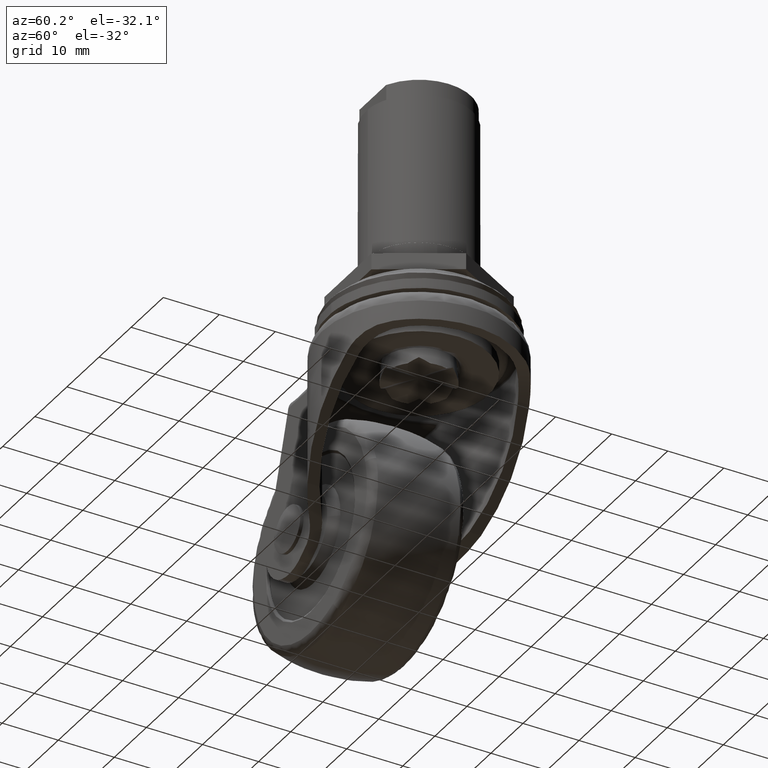
[diagram: clean part render]
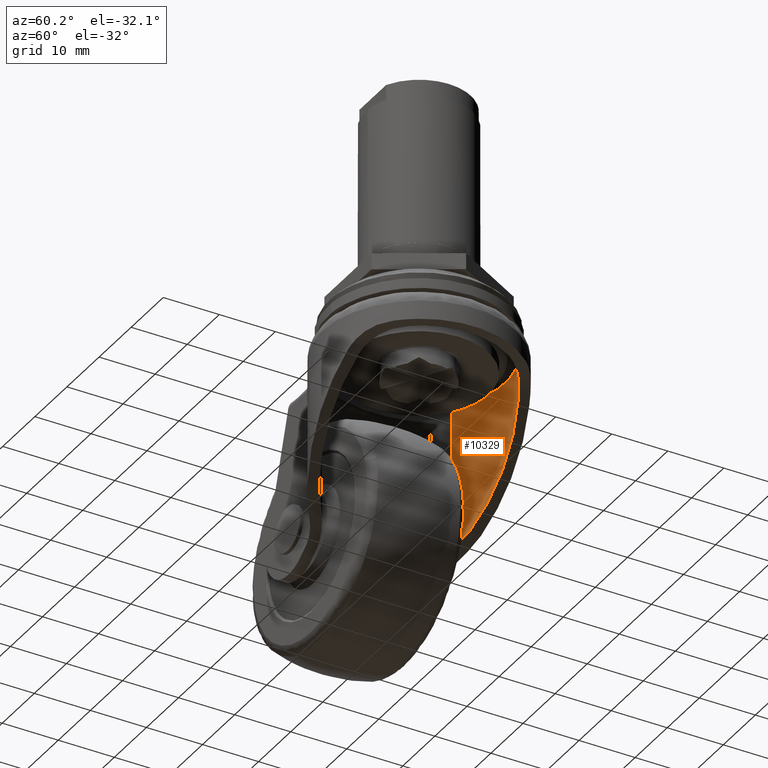
[diagram: same view with one face highlighted and labeled with its STEP entity id]
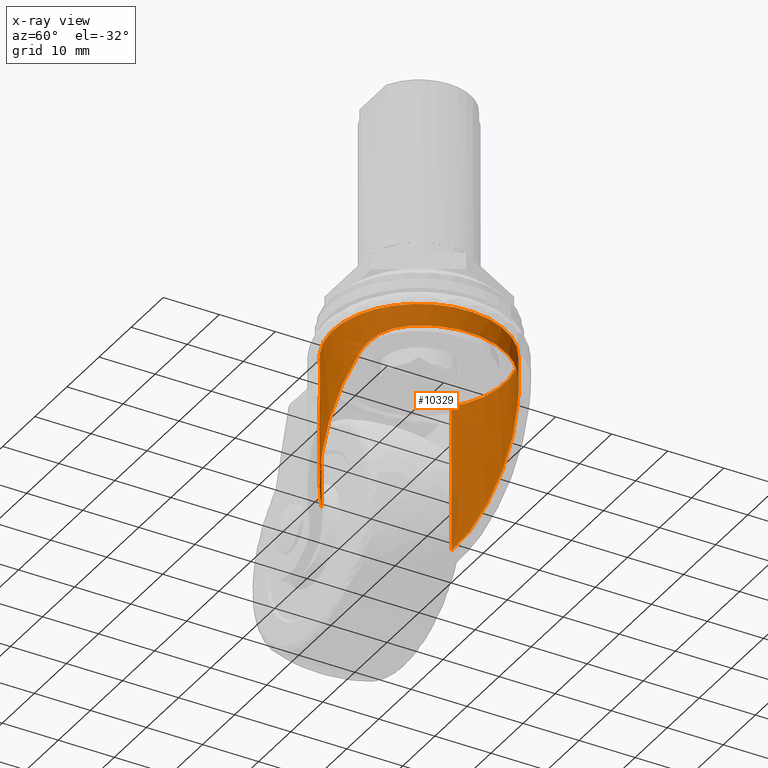
[diagram: x-ray of the same camera — body ghosted, the highlighted face saturated]
A machine part, auxiliary view. The second image highlights one B-rep face of the part: STEP entity #10329.
The next image is the same camera in x-ray: the body ghosted, the highlighted face saturated — about 3% of this face is hidden behind the body in this view.
In plain terms, the highlighted face is a freeform B-spline surface patch.
Its self-contained STEP definition (entity closure, byte-faithful):
#6737=CARTESIAN_POINT('',(-10.172110341809001,-11.575675841784021,-10.923080000000001));
#6738=VERTEX_POINT('',#6737);
#6799=CARTESIAN_POINT('',(-10.172110341809001,11.575675841784021,-10.923080000000001));
#6800=VERTEX_POINT('',#6799);
#6814=CARTESIAN_POINT('',(-10.172110341809010,-11.575675841784021,-10.923080000000001));
#6815=CARTESIAN_POINT('',(0.916592235011827,-21.319859049797863,-10.923080000000002));
#6816=CARTESIAN_POINT('',(11.128072722811810,-10.659929524898921,-10.923080000000001));
#6817=CARTESIAN_POINT('',(21.339553210611783,3.469447E-015,-10.923080000000002));
#6818=CARTESIAN_POINT('',(11.128072722811799,10.659929524898930,-10.923080000000001));
#6819=CARTESIAN_POINT('',(0.916592235011815,21.319859049797863,-10.923080000000002));
#6820=CARTESIAN_POINT('',(-10.172110341809010,11.575675841784021,-10.923080000000001));
#6828=(BOUNDED_CURVE()B_SPLINE_CURVE(2,(#6814,#6815,#6816,#6817,#6818,#6819,#6820),.UNSPECIFIED.,.F.,.U.)B_SPLINE_CURVE_WITH_KNOTS((3,2,2,3),(0.0,0.333333333333333,0.666666666666667,1.0),.UNSPECIFIED.)CURVE()GEOMETRIC_REPRESENTATION_ITEM()RATIONAL_B_SPLINE_CURVE((1.0,0.722133207190902,1.0,0.722133207190902,1.0,0.722133207190902,1.0))REPRESENTATION_ITEM(''));
#6829=EDGE_CURVE('',#6738,#6800,#6828,.T.);
#10043=CARTESIAN_POINT('',(-10.172110341809001,-11.575675841784021,-37.220848291844149));
#10044=VERTEX_POINT('',#10043);
#10045=CARTESIAN_POINT('',(-10.172110341809001,-11.575675841784021,-10.923080000000001));
#10046=CARTESIAN_POINT('',(-10.172110341809001,-11.575675841784021,-37.220848291844149));
#10047=QUASI_UNIFORM_CURVE('',1,(#10045,#10046),.UNSPECIFIED.,.F.,.U.);
#10048=EDGE_CURVE('',#6738,#10044,#10047,.T.);
#10119=CARTESIAN_POINT('',(-10.172110341809001,11.575675841784021,-37.220848291844149));
#10120=VERTEX_POINT('',#10119);
#10134=CARTESIAN_POINT('',(-10.172110341809001,11.575675841784021,-37.220848291844149));
#10135=CARTESIAN_POINT('',(-10.172110341809001,11.575675841784021,-10.923080000000001));
#10136=QUASI_UNIFORM_CURVE('',1,(#10134,#10135),.UNSPECIFIED.,.F.,.U.);
#10137=EDGE_CURVE('',#10120,#6800,#10136,.T.);
#10164=CARTESIAN_POINT('',(-10.600989889610220,11.184235036889280,-37.878292499140251));
#10165=CARTESIAN_POINT('',(-10.600989889610220,11.184235036889280,-10.249199687521489));
#10166=CARTESIAN_POINT('',(0.453861924826980,21.662588892065706,-37.878292499140251));
#10167=CARTESIAN_POINT('',(0.453861924826980,21.662588892065706,-10.249199687521493));
#10168=CARTESIAN_POINT('',(11.060132618569700,10.730403834882001,-37.878292499140251));
#10169=CARTESIAN_POINT('',(11.060132618569700,10.730403834882001,-10.249199687521489));
#10170=CARTESIAN_POINT('',(21.666403312312415,-0.201781222301694,-37.878292499140251));
#10171=CARTESIAN_POINT('',(21.666403312312415,-0.201781222301694,-10.249199687521493));
#10172=CARTESIAN_POINT('',(10.858365055241750,-10.934532835338910,-37.878292499140251));
#10173=CARTESIAN_POINT('',(10.858365055241750,-10.934532835338910,-10.249199687521489));
#10174=CARTESIAN_POINT('',(0.050326798171074,-21.667284448376130,-37.878292499140251));
#10175=CARTESIAN_POINT('',(0.050326798171074,-21.667284448376130,-10.249199687521493));
#10176=CARTESIAN_POINT('',(-10.807452691397019,-10.984856226788549,-37.878292499140251));
#10177=CARTESIAN_POINT('',(-10.807452691397019,-10.984856226788549,-10.249199687521489));
#10185=(BOUNDED_SURFACE()B_SPLINE_SURFACE(1,2,((#10164,#10166,#10168,#10170,#10172,#10174,#10176),(#10165,#10167,#10169,#10171,#10173,#10175,#10177)),.UNSPECIFIED.,.F.,.F.,.U.)B_SPLINE_SURFACE_WITH_KNOTS((2,2),(3,2,2,3),(0.0,27.629092811618762),(0.0,25.322309091063321,50.644618182126642,75.966927273189953),.UNSPECIFIED.)GEOMETRIC_REPRESENTATION_ITEM()RATIONAL_B_SPLINE_SURFACE(((1.0,0.711208572010137,1.0,0.711208572010137,1.0,0.711208572010137,1.0),(1.0,0.711208572010137,1.0,0.711208572010137,1.0,0.711208572010137,1.0)))REPRESENTATION_ITEM('')SURFACE());
#10186=ORIENTED_EDGE('',*,*,#10048,.F.);
#10187=ORIENTED_EDGE('',*,*,#6829,.T.);
#10188=ORIENTED_EDGE('',*,*,#10137,.F.);
#10189=CARTESIAN_POINT('',(-7.697175877460260,13.349965674541719,-34.593574192256312));
#10190=VERTEX_POINT('',#10189);
#10191=CARTESIAN_POINT('',(-7.697175877460294,13.349965674541760,-34.593574192256277));
#10192=CARTESIAN_POINT('',(-9.022730131466346,12.585692231677617,-36.000720284128704));
#10193=CARTESIAN_POINT('',(-10.172110341808990,11.575675841784040,-37.220848291844163));
#10201=(BOUNDED_CURVE()B_SPLINE_CURVE(2,(#10191,#10192,#10193),.UNSPECIFIED.,.F.,.U.)CURVE()GEOMETRIC_REPRESENTATION_ITEM()QUASI_UNIFORM_CURVE()RATIONAL_B_SPLINE_CURVE((1.0,0.995106632347317,1.0))REPRESENTATION_ITEM(''));
#10202=EDGE_CURVE('',#10190,#10120,#10201,.T.);
#10203=ORIENTED_EDGE('',*,*,#10202,.F.);
#10204=CARTESIAN_POINT('',(6.087201972660830,14.156767715267300,-18.038480959911400));
#10205=VERTEX_POINT('',#10204);
#10206=CARTESIAN_POINT('',(6.087201972660794,14.156767715267300,-18.038480959911372));
#10207=CARTESIAN_POINT('',(-1.007142257829993,17.207231427263213,-26.558816910880044));
#10208=CARTESIAN_POINT('',(-7.697175877460314,13.349965674541750,-34.593574192256263));
#10216=(BOUNDED_CURVE()B_SPLINE_CURVE(2,(#10206,#10207,#10208),.UNSPECIFIED.,.F.,.U.)CURVE()GEOMETRIC_REPRESENTATION_ITEM()QUASI_UNIFORM_CURVE()RATIONAL_B_SPLINE_CURVE((1.0,0.894023657795619,1.0))REPRESENTATION_ITEM(''));
#10217=EDGE_CURVE('',#10205,#10190,#10216,.T.);
#10218=ORIENTED_EDGE('',*,*,#10217,.F.);
#10219=CARTESIAN_POINT('',(12.614407805257439,8.851260685498991,-14.892319114851119));
#10220=VERTEX_POINT('',#10219);
#10221=CARTESIAN_POINT('',(6.087201972660825,14.156767715267289,-18.038480959911400));
#10222=CARTESIAN_POINT('',(6.327015063082124,14.053651612323250,-17.750464473898841));
#10223=CARTESIAN_POINT('',(6.582169674248889,13.936757936452350,-17.481591840022020));
#10224=CARTESIAN_POINT('',(6.918219608004614,13.769966137137461,-17.168980681795759));
#10225=CARTESIAN_POINT('',(6.986286822953774,13.735570716548031,-17.107635448299430));
#10226=CARTESIAN_POINT('',(7.124090498378771,13.664605411528671,-16.987299161452771));
#10227=CARTESIAN_POINT('',(7.193948581075007,13.627970207855871,-16.928209333846201));
#10228=CARTESIAN_POINT('',(7.405081890194600,13.515115052893339,-16.755193121084631));
#10229=CARTESIAN_POINT('',(7.547314107104787,13.436276718371010,-16.645977791761009));
#10230=CARTESIAN_POINT('',(7.977498661162343,13.188523201894901,-16.335638507949771));
#10231=CARTESIAN_POINT('',(8.268922347998309,13.008379409443920,-16.151784127249311));
#10232=CARTESIAN_POINT('',(8.709687017928637,12.713798801461470,-15.907139910390709));
#10233=CARTESIAN_POINT('',(8.857218406528704,12.611542058510610,-15.830791946495429));
#10234=CARTESIAN_POINT('',(9.079045664149264,12.451800374922730,-15.723717160110819));
#10235=CARTESIAN_POINT('',(9.153076584056205,12.397493539290730,-15.689267168366261));
#10236=CARTESIAN_POINT('',(9.301252490359071,12.286714740765429,-15.622795810328521));
#10237=CARTESIAN_POINT('',(9.375415415644625,12.230223864490130,-15.590772525015010));
#10238=CARTESIAN_POINT('',(9.743609601151396,11.944421786070810,-15.437684545864281));
#10239=CARTESIAN_POINT('',(10.032005315806339,11.703427962465700,-15.336588794350030));
#10240=CARTESIAN_POINT('',(10.594469518063921,11.196810812003820,-15.169310401897061));
#10241=CARTESIAN_POINT('',(10.868545964299971,10.931187807625751,-15.103156585547890));
#10242=CARTESIAN_POINT('',(11.267555654227211,10.514147808777190,-15.025469175178790));
#10243=CARTESIAN_POINT('',(11.398542037498610,10.372031557417079,-15.003173602645340));
#10244=CARTESIAN_POINT('',(11.591825199102230,10.154167290114350,-14.974613894256841));
#10245=CARTESIAN_POINT('',(11.655720156659040,10.080764084700220,-14.965908315690561));
#10246=CARTESIAN_POINT('',(11.782415489694911,9.932386527412600,-14.950043683391881));
#10247=CARTESIAN_POINT('',(11.845286313158850,9.857325961119106,-14.942877582225240));
#10248=CARTESIAN_POINT('',(12.155978595274091,9.479114489371661,-14.910799215560520));
#10249=CARTESIAN_POINT('',(12.391514816187360,9.168917475979614,-14.897185898083089));
#10250=CARTESIAN_POINT('',(12.614407805257439,8.851260685498994,-14.892319114851100));
#10251=B_SPLINE_CURVE_WITH_KNOTS('',3,(#10221,#10222,#10223,#10224,#10225,#10226,#10227,#10228,#10229,#10230,#10231,#10232,#10233,#10234,#10235,#10236,#10237,#10238,#10239,#10240,#10241,#10242,#10243,#10244,#10245,#10246,#10247,#10248,#10249,#10250),.UNSPECIFIED.,.F.,.U.,(4,2,2,2,2,2,2,2,2,2,2,2,2,2,4),(0.0,0.125000000000000,0.156250000000000,0.187500000000000,0.250000000000000,0.375000000000001,0.437500000000001,0.468750000000001,0.500000000000001,0.625000000000001,0.750000000000001,0.812500000000001,0.843750000000001,0.875000000000000,1.0),.UNSPECIFIED.);
#10252=EDGE_CURVE('',#10205,#10220,#10251,.T.);
#10253=ORIENTED_EDGE('',*,*,#10252,.T.);
#10254=CARTESIAN_POINT('',(12.614407805257439,-8.851260685498991,-14.892319114851119));
#10255=VERTEX_POINT('',#10254);
#10256=CARTESIAN_POINT('',(12.614407805257439,8.851260685498991,-14.892319114851119));
#10257=CARTESIAN_POINT('',(18.825148486243442,-5.204170E-015,-14.756709965678178));
#10258=CARTESIAN_POINT('',(12.614407805257439,-8.851260685498991,-14.892319114851119));
#10266=(BOUNDED_CURVE()B_SPLINE_CURVE(2,(#10256,#10257,#10258),.UNSPECIFIED.,.F.,.U.)CURVE()GEOMETRIC_REPRESENTATION_ITEM()QUASI_UNIFORM_CURVE()RATIONAL_B_SPLINE_CURVE((1.0,0.818585840704572,1.0))REPRESENTATION_ITEM(''));
#10267=EDGE_CURVE('',#10220,#10255,#10266,.T.);
#10268=ORIENTED_EDGE('',*,*,#10267,.T.);
#10269=CARTESIAN_POINT('',(6.087201972660830,-14.156767715267300,-18.038480959911400));
#10270=VERTEX_POINT('',#10269);
#10271=CARTESIAN_POINT('',(12.614407805257439,-8.851260685498993,-14.892319114851100));
#10272=CARTESIAN_POINT('',(12.391943123891130,-9.168307071627774,-14.897176546148060));
#10273=CARTESIAN_POINT('',(12.157295836324909,-9.477330571482685,-14.910745808691580));
#10274=CARTESIAN_POINT('',(11.786780125682011,-9.928635277423494,-14.948877646377939));
#10275=CARTESIAN_POINT('',(11.660127094971109,-10.077090124940520,-14.964568804920470));
#10276=CARTESIAN_POINT('',(11.400765946946031,-10.369611616642590,-15.002798828649910));
#10277=CARTESIAN_POINT('',(11.269073095298159,-10.512536741601270,-15.025189156467460));
#10278=CARTESIAN_POINT('',(10.868365786317170,-10.931425973658140,-15.103160974753081));
#10279=CARTESIAN_POINT('',(10.593720070657049,-11.197511784792299,-15.169511988163780));
#10280=CARTESIAN_POINT('',(10.031586708760001,-11.703779014089170,-15.336734634980830));
#10281=CARTESIAN_POINT('',(9.744090933403182,-11.943959643986490,-15.437582080261530));
#10282=CARTESIAN_POINT('',(9.304967058586497,-12.284951488000351,-15.620015319954121));
#10283=CARTESIAN_POINT('',(9.157281144204674,-12.395400438266041,-15.686032210890920));
#10284=CARTESIAN_POINT('',(8.859620544886754,-12.609872076258061,-15.829555319483930));
#10285=CARTESIAN_POINT('',(8.711314799635851,-12.712692217762390,-15.906264712216650));
#10286=CARTESIAN_POINT('',(8.269018681321175,-13.008352159117040,-16.151674390576488));
#10287=CARTESIAN_POINT('',(7.977512627511521,-13.188491311902030,-16.335679705260372));
#10288=CARTESIAN_POINT('',(7.548559509568265,-13.435571332550831,-16.645053822149109));
#10289=CARTESIAN_POINT('',(7.336164161699410,-13.553324259004331,-16.808093906836579));
#10290=CARTESIAN_POINT('',(7.127571926555725,-13.662790901458809,-16.984321767476239));
#10291=CARTESIAN_POINT('',(6.989438298693896,-13.733968437926530,-17.104823638942449));
#10292=CARTESIAN_POINT('',(6.920753149372940,-13.768695566883620,-17.166666096778162));
#10293=CARTESIAN_POINT('',(6.582592664460822,-13.936599373699529,-17.481032610930519));
#10294=CARTESIAN_POINT('',(6.326836649722721,-14.053728327444610,-17.750678749060981));
#10295=CARTESIAN_POINT('',(6.087201972660823,-14.156767715267289,-18.038480959911400));
#10296=B_SPLINE_CURVE_WITH_KNOTS('',3,(#10271,#10272,#10273,#10274,#10275,#10276,#10277,#10278,#10279,#10280,#10281,#10282,#10283,#10284,#10285,#10286,#10287,#10288,#10289,#10290,#10291,#10292,#10293,#10294,#10295),.UNSPECIFIED.,.F.,.U.,(4,2,2,2,2,2,2,2,2,1,2,2,4),(0.0,0.124999999999999,0.187499999999999,0.249999999999999,0.374999999999999,0.499999999999999,0.562499999999999,0.624999999999999,0.749999999999999,0.812499999999999,0.843749999999999,0.874999999999999,1.0),.UNSPECIFIED.);
#10297=EDGE_CURVE('',#10255,#10270,#10296,.T.);
#10298=ORIENTED_EDGE('',*,*,#10297,.T.);
#10299=CARTESIAN_POINT('',(-7.697175877460260,-13.349965674541780,-34.593574192256312));
#10300=VERTEX_POINT('',#10299);
#10301=CARTESIAN_POINT('',(-7.697175877460317,-13.349965674541750,-34.593574192256270));
#10302=CARTESIAN_POINT('',(-1.007142257829996,-17.207231427263217,-26.558816910880040));
#10303=CARTESIAN_POINT('',(6.087201972660790,-14.156767715267300,-18.038480959911379));
#10311=(BOUNDED_CURVE()B_SPLINE_CURVE(2,(#10301,#10302,#10303),.UNSPECIFIED.,.F.,.U.)CURVE()GEOMETRIC_REPRESENTATION_ITEM()QUASI_UNIFORM_CURVE()RATIONAL_B_SPLINE_CURVE((1.0,0.894023657795623,1.0))REPRESENTATION_ITEM(''));
#10312=EDGE_CURVE('',#10300,#10270,#10311,.T.);
#10313=ORIENTED_EDGE('',*,*,#10312,.F.);
#10314=CARTESIAN_POINT('',(-10.172110341809010,-11.575675841784021,-37.220848291844192));
#10315=CARTESIAN_POINT('',(-9.022730131466361,-12.585692231677605,-36.000720284128725));
#10316=CARTESIAN_POINT('',(-7.697175877460298,-13.349965674541760,-34.593574192256277));
#10324=(BOUNDED_CURVE()B_SPLINE_CURVE(2,(#10314,#10315,#10316),.UNSPECIFIED.,.F.,.U.)CURVE()GEOMETRIC_REPRESENTATION_ITEM()QUASI_UNIFORM_CURVE()RATIONAL_B_SPLINE_CURVE((1.0,0.995106632347310,1.0))REPRESENTATION_ITEM(''));
#10325=EDGE_CURVE('',#10044,#10300,#10324,.T.);
#10326=ORIENTED_EDGE('',*,*,#10325,.F.);
#10327=EDGE_LOOP('',(#10186,#10187,#10188,#10203,#10218,#10253,#10268,#10298,#10313,#10326));
#10328=FACE_OUTER_BOUND('',#10327,.T.);
#10329=ADVANCED_FACE('',(#10328),#10185,.F.);